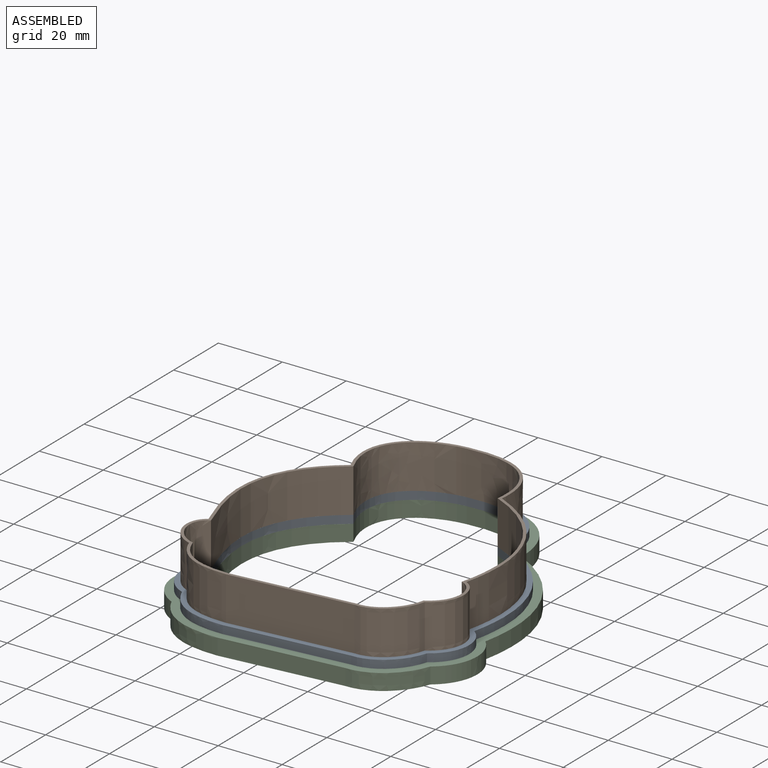
[diagram: assembled view]
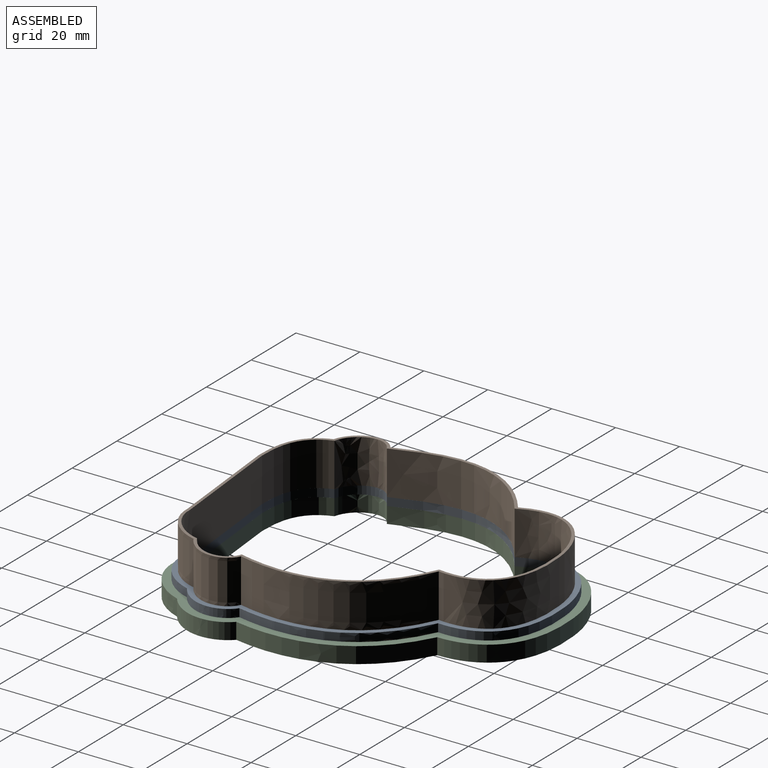
[diagram: assembled view, second angle]
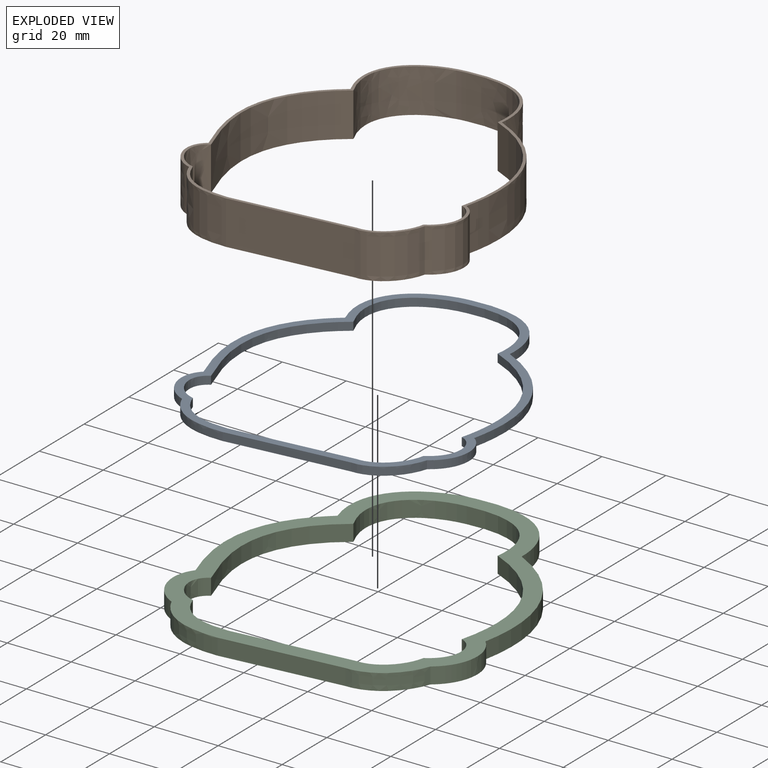
[diagram: exploded view]
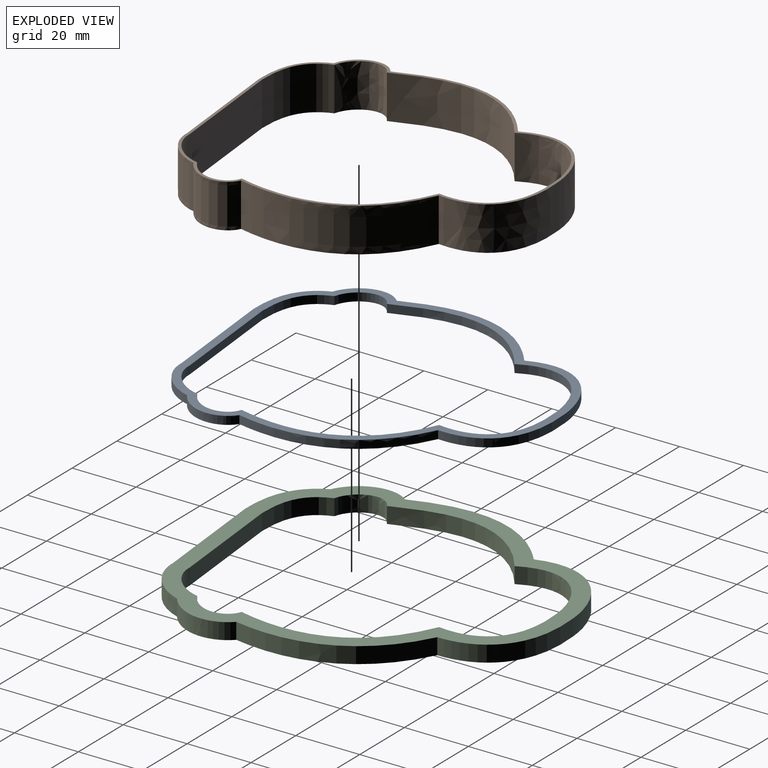
[diagram: exploded view, second angle]
ASSEMBLY  parts=3 mates=2
PART A: 20 faces, bbox 90.6x104x4.3 mm
  f0: plane 103.97x90.57mm, normal (0,0,1), area 783.2mm2, adj f2,f3,f4,f5,f6,f7,f8,f9
  f1: plane 103.97x90.57mm, normal (0,0,-1), area 783.2mm2, adj f2,f3,f4,f5,f6,f7,f8,f9
  f2: extruded ~27.12x22.23mm, area 102.8mm2, adj f0,f1,f3,f10
  f3: extruded ~47.64x15.22mm, area 135.4mm2, adj f0,f1,f2,f4
  f4: extruded ~16.66x7.58mm, area 52.4mm2, adj f0,f1,f3,f5
  f5: extruded ~20.08x10.53mm, area 61.8mm2, adj f0,f1,f4,f6
  f6: extruded ~37.54x3.74mm, area 95.8mm2, adj f0,f1,f5,f7
  f7: extruded ~15.17x12.3mm, area 53.2mm2, adj f0,f1,f6,f8
  f8: extruded ~17.96x5.99mm, area 54.1mm2, adj f0,f1,f7,f9
  f9: extruded ~46.94x23.11mm, area 143.7mm2, adj f0,f1,f8,f10
  f10: extruded ~26.76x21.24mm, area 101.4mm2, adj f0,f1,f2,f9
  f11: extruded ~25.41x19.91mm, area 95.7mm2, adj f0,f1,f12,f19
  f12: extruded ~47.75x15.82mm, area 137.1mm2, adj f0,f1,f11,f13
  f13: extruded ~13.68x7mm, area 46.2mm2, adj f0,f1,f12,f14
  f14: extruded ~17.98x10.04mm, area 56.8mm2, adj f0,f1,f13,f15
  f15: extruded ~37.61x3.75mm, area 96mm2, adj f0,f1,f14,f16
  f16: extruded ~13.01x11.37mm, area 47.4mm2, adj f0,f1,f15,f17
  f17: extruded ~14.99x5.69mm, area 48.2mm2, adj f0,f1,f16,f18
  f18: extruded ~46.74x23.29mm, area 144.5mm2, adj f0,f1,f17,f19
  f19: extruded ~24x20.26mm, area 94.7mm2, adj f0,f1,f11,f18
PART B: 20 faces, bbox 94.5x107x20.9 mm
  f0: plane 107.03x94.55mm, normal (0,0,1), area 270.2mm2, adj f2,f3,f4,f5,f6,f7,f8,f9
  f1: plane 107.03x94.55mm, normal (0,0,-1), area 270.2mm2, adj f2,f3,f4,f5,f6,f7,f8,f9
  f2: extruded ~26.01x20.73mm, area 530.3mm2, adj f0,f1,f3,f10
  f3: extruded ~47.65x15.6mm, area 736.2mm2, adj f0,f1,f2,f4
  f4: extruded ~14.8x13.72mm, area 261.4mm2, adj f0,f1,f3,f5
  f5: extruded ~18.72x13.72mm, area 315.8mm2, adj f0,f1,f4,f6
  f6: extruded ~37.58x13.72mm, area 518mm2, adj f0,f1,f5,f7
  f7: extruded ~13.78x13.72mm, area 267.1mm2, adj f0,f1,f6,f8
  f8: extruded ~16.1x13.72mm, area 271.7mm2, adj f0,f1,f7,f9
  f9: extruded ~46.74x23.21mm, area 777.7mm2, adj f0,f1,f8,f10
  f10: extruded ~24.97x20.6mm, area 524.1mm2, adj f0,f1,f2,f9
  f11: extruded ~25.41x19.91mm, area 516.9mm2, adj f0,f1,f12,f19
  f12: extruded ~47.75x15.82mm, area 740.5mm2, adj f0,f1,f11,f13
  f13: extruded ~13.72x13.68mm, area 249.4mm2, adj f0,f1,f12,f14
  f14: extruded ~17.98x13.72mm, area 306.5mm2, adj f0,f1,f13,f15
  f15: extruded ~37.61x13.72mm, area 518.4mm2, adj f0,f1,f14,f16
  f16: extruded ~13.72x13.01mm, area 256.2mm2, adj f0,f1,f15,f17
  f17: extruded ~14.99x13.72mm, area 260.5mm2, adj f0,f1,f16,f18
  f18: extruded ~46.74x23.29mm, area 780.5mm2, adj f0,f1,f17,f19
  f19: extruded ~24x20.26mm, area 511.4mm2, adj f0,f1,f11,f18
PART C: 20 faces, bbox 97.2x111.4x9.2 mm
  f0: plane 111.42x97.21mm, normal (0,0,1), area 1602.1mm2, adj f2,f3,f4,f5,f6,f7,f8,f9
  f1: plane 111.42x97.21mm, normal (0,0,-1), area 1602.1mm2, adj f2,f3,f4,f5,f6,f7,f8,f9
  f2: extruded ~28.8x24.55mm, area 220mm2, adj f0,f1,f3,f10
  f3: extruded ~47.91x14.73mm, area 269.7mm2, adj f0,f1,f2,f4
  f4: extruded ~19.18x8.19mm, area 116.5mm2, adj f0,f1,f3,f5
  f5: extruded ~22.16x11.13mm, area 134.2mm2, adj f0,f1,f4,f6
  f6: extruded ~37.48x5.08mm, area 191.4mm2, adj f0,f1,f5,f7
  f7: extruded ~17.24x13.26mm, area 117.9mm2, adj f0,f1,f6,f8
  f8: extruded ~20.51x6.36mm, area 119.7mm2, adj f0,f1,f7,f9
  f9: extruded ~47.52x23.03mm, area 288.2mm2, adj f0,f1,f8,f10
  f10: extruded ~29.52x22.24mm, area 216.4mm2, adj f0,f1,f2,f9
  f11: extruded ~25.41x19.91mm, area 191.5mm2, adj f0,f1,f12,f19
  f12: extruded ~47.75x15.82mm, area 274.3mm2, adj f0,f1,f11,f13
  f13: extruded ~13.68x7mm, area 92.4mm2, adj f0,f1,f12,f14
  f14: extruded ~17.98x10.04mm, area 113.5mm2, adj f0,f1,f13,f15
  f15: extruded ~37.61x5.08mm, area 192mm2, adj f0,f1,f14,f16
  f16: extruded ~13.01x11.37mm, area 94.9mm2, adj f0,f1,f15,f17
  f17: extruded ~14.99x5.69mm, area 96.5mm2, adj f0,f1,f16,f18
  f18: extruded ~46.74x23.29mm, area 289.1mm2, adj f0,f1,f17,f19
  f19: extruded ~24x20.26mm, area 189.4mm2, adj f0,f1,f11,f18
PLACE A t=(191.31,1.75,5.08)mm
PLACE B t=(100.26,0.69,7.62)mm
PLACE C at identity
MATE fastened B.f1 <-> A.f0  axis (0,0,-1) through (131.85,-16.63,7.62)mm
MATE fastened A.f1 <-> C.f0  axis (0,0,1) through (131.85,-16.63,5.08)mm
